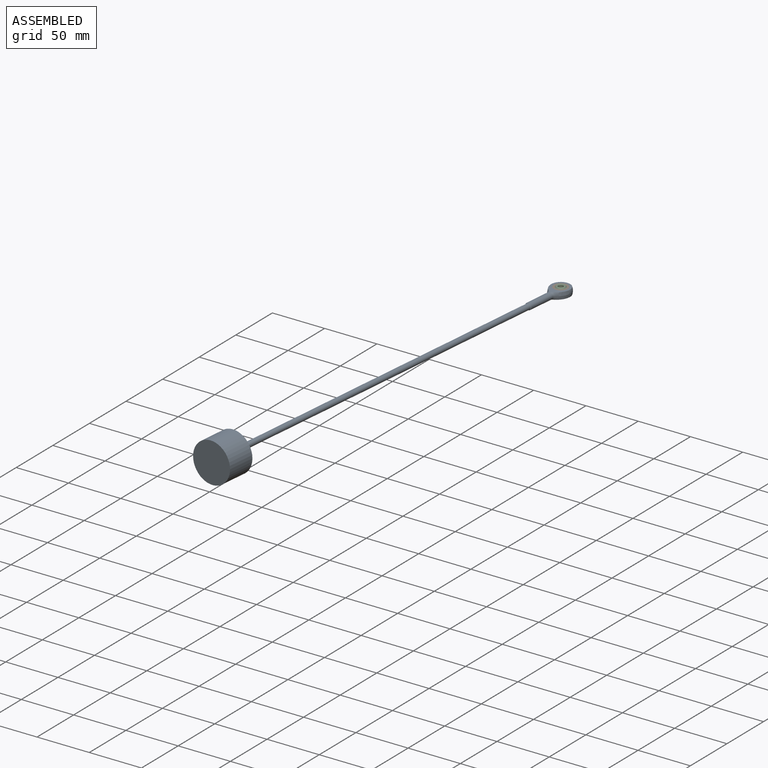
[diagram: assembled view]
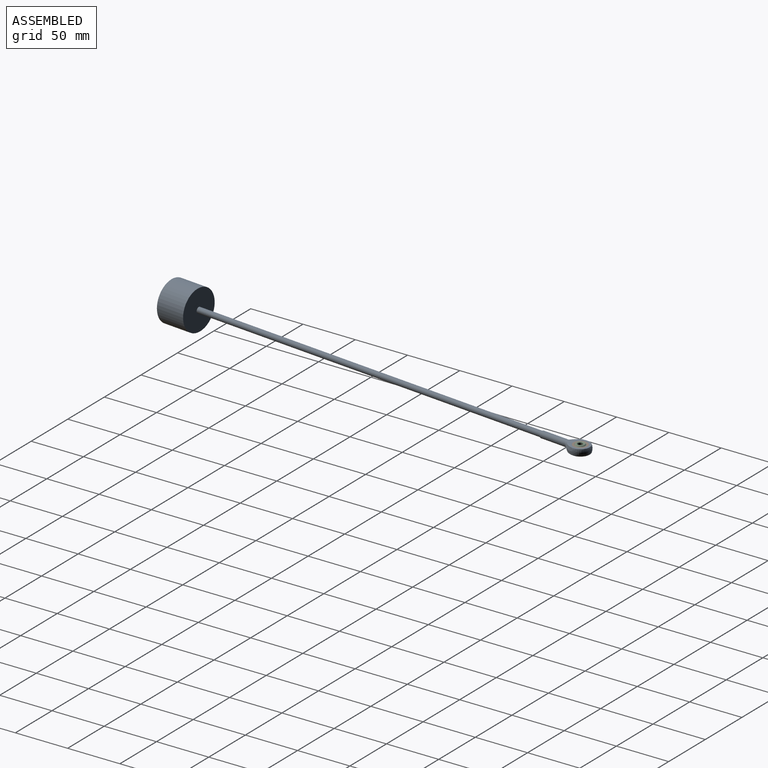
[diagram: assembled view, second angle]
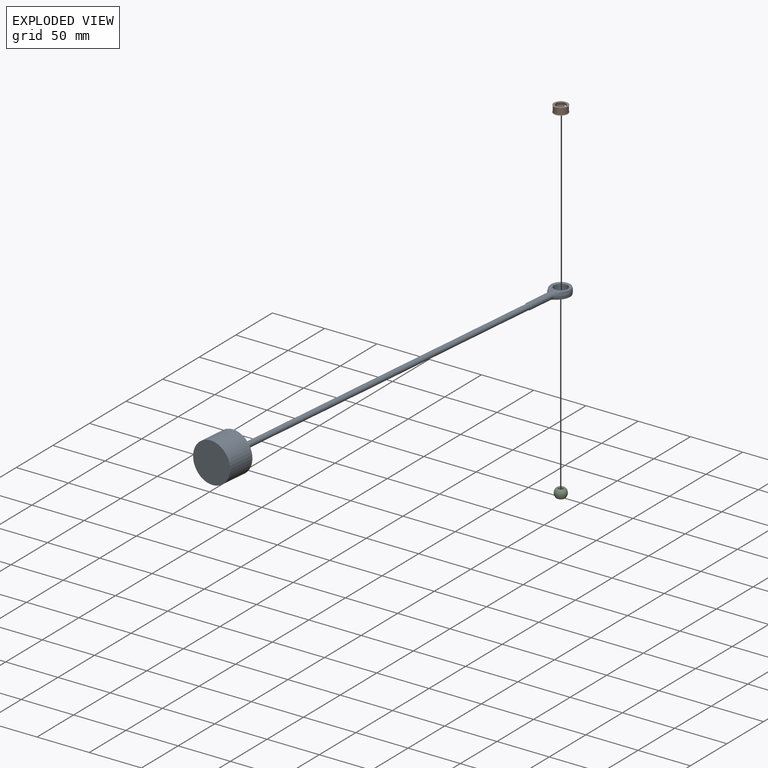
[diagram: exploded view]
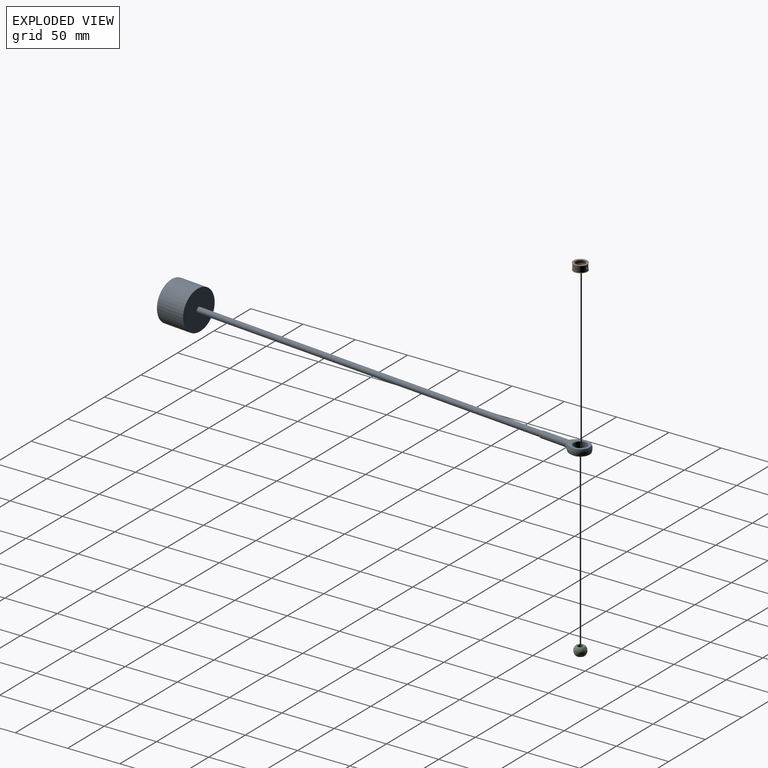
[diagram: exploded view, second angle]
ASSEMBLY  parts=3 mates=2
PART A: 21 faces, bbox 262.5x374.3x39.5 mm
  f0: cylinder r=2.67mm len=298.44mm, axis (-0.55,0.83,0), area 5932.3mm2, adj f2,f20
  f1: cylinder r=19.05mm len=46.66mm, axis (0.55,-0.83,0), area 3230.3mm2, adj f2,f3
  f2: plane 38.1x31.8mm, normal (-0.55,0.83,0), area 1117.7mm2, adj f0,f1
  f3: plane 38.1x31.8mm, normal (0.55,-0.83,0), area 1140.1mm2, adj f1
  f4: torus R=5.54mm, axis (0.55,-0.83,0), area 15.1mm2, adj f5,f6,f7,f8
  f5: plane 21.57x20.2mm, normal (0,0,-1), area 151.9mm2, adj f4,f8,f9,f11,f13,f14,f15,f16
  f6: cylinder r=3.17mm len=6.35mm, axis (0.55,-0.83,0), area 17.4mm2, adj f4,f10,f11
  f7: plane 21.57x20.2mm, normal (0,0,1), area 152mm2, adj f4,f8,f11,f12,f13,f14,f15,f16
  f8: cone r=4.78mm half-angle=42.5deg, axis (-0.55,0.83,0), area 21.6mm2, adj f4,f5,f7,f14
  f9: cone r=6.53mm half-angle=45deg, axis (0,0,-1), area 22.1mm2, adj f5,f17
  f10: plane 6.35x5.3mm, normal (0.55,-0.83,0), area 0.1mm2, adj f6,f18
  f11: torus R=5.54mm, axis (0.55,-0.83,0), area 15.1mm2, adj f5,f6,f7,f15
  f12: cone r=6.53mm half-angle=45deg, axis (0,0,1), area 22.1mm2, adj f7,f17
  f13: sphere r=9.53mm, area 190mm2, adj f5,f7,f14,f16
  f14: bspline ~24.92x20.93mm, area 79.2mm2, adj f5,f7,f8,f13
  f15: cone r=4.78mm half-angle=42.5deg, axis (-0.55,0.83,0), area 21.6mm2, adj f5,f7,f11,f16
  f16: bspline ~10.65x10.48mm, area 79.2mm2, adj f5,f7,f13,f15
  f17: cylinder r=6.34mm len=12.67mm, axis (0,0,-1), area 222.5mm2, adj f9,f12
  f18: cone r=3.17mm half-angle=45deg, axis (0.55,-0.83,0), area 0.1mm2, adj f10,f19
  f19: cylinder r=3.17mm len=24.27mm, axis (0.55,-0.83,0), area 496.5mm2, adj f18,f20
  f20: cone r=2.92mm half-angle=45deg, axis (-0.55,0.83,0), area 13.2mm2, adj f0,f19
PART B: 11 faces, bbox 13.4x13.4x10.9 mm
  f0: cone r=6.53mm half-angle=45deg, axis (0,0,1), area 22.1mm2, adj f2,f6
  f1: cone r=6.53mm half-angle=45deg, axis (0,0,-1), area 22.1mm2, adj f4,f6
  f2: plane 13.44x13.44mm, normal (0,0,1), area 68.5mm2, adj f0,f3
  f3: cone r=4.69mm half-angle=60deg, axis (0,0,1), area 6.6mm2, adj f2,f7
  f4: plane 13.44x13.44mm, normal (0,0,-1), area 68.5mm2, adj f1,f5
  f5: cone r=4.69mm half-angle=60deg, axis (0,0,-1), area 6.6mm2, adj f4,f8
  f6: cylinder r=6.34mm len=12.67mm, axis (0,0,1), area 220.9mm2, adj f0,f1,f9
  f7: bspline ~13.13x13.13mm, area 80.2mm2, adj f3,f10
  f8: bspline ~13.13x13.13mm, area 80.3mm2, adj f5,f10
  f9: cylinder r=0.79mm len=1.57mm, axis (0,1,0), area 3.2mm2, adj f6,f10
  f10: torus R=4.24mm, axis (0,0,1), area 61.4mm2, adj f7,f8,f9
PART C: 6 faces, bbox 11.1x11.1x11.1 mm
  f0: cylinder r=2.41mm len=7.16mm, axis (0,0,1), area 108.6mm2, adj f1,f2
  f1: cone r=2.6mm half-angle=45deg, axis (0,0,-1), area 8.8mm2, adj f0,f3
  f2: cone r=2.6mm half-angle=45deg, axis (0,0,1), area 8.8mm2, adj f0,f4
  f3: plane 7.77x7.77mm, normal (0,0,-1), area 22.9mm2, adj f1,f5
  f4: plane 7.77x7.77mm, normal (0,0,1), area 22.9mm2, adj f2,f5
  f5: sphere r=5.55mm, area 276.3mm2, adj f3,f4
PLACE A rot(axis=(0,0,-1),39deg) t=(-60.58,-251.93,-15.93)mm
PLACE B t=(-310.64,77.73,56.22)mm
PLACE C t=(-310.64,77.73,56.22)mm
MATE fastened B.f6 <-> A.f12  axis (0,0,1) through (-310.64,38.06,56.22)mm
MATE fastened C.f0 <-> B.f6  axis (0,0,1) through (-310.64,38.06,56.22)mm
